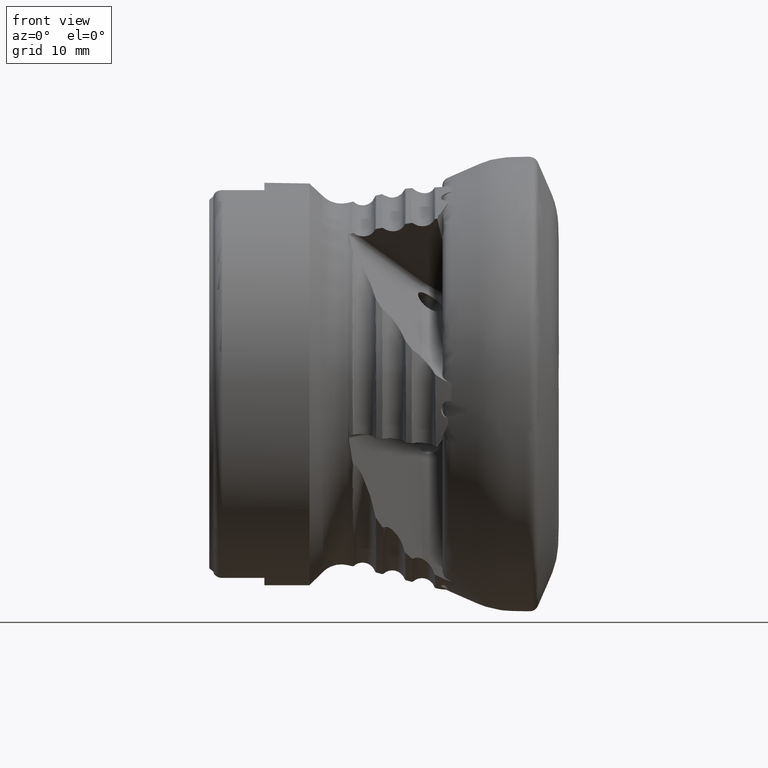
[diagram: clean part render]
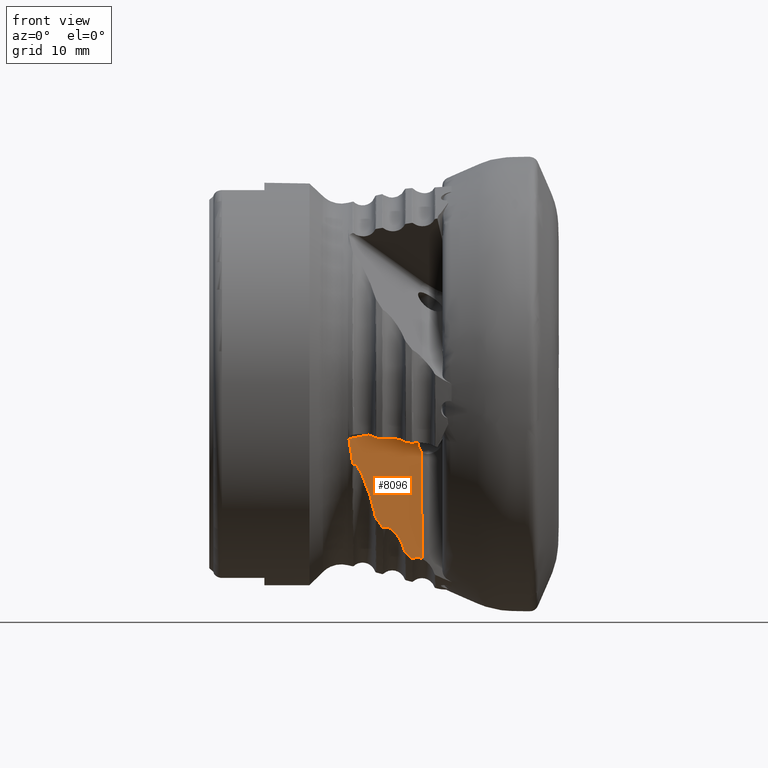
[diagram: same view with one face highlighted and labeled with its STEP entity id]
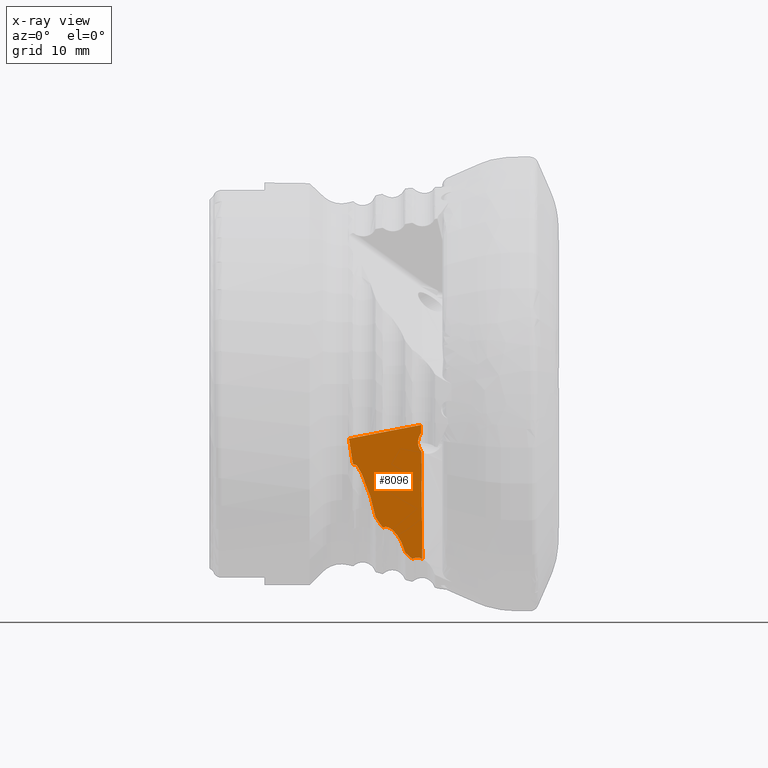
[diagram: x-ray of the same camera — body ghosted, the highlighted face saturated]
A machine part, front view. The second image highlights one B-rep face of the part: STEP entity #8096.
The next image is the same camera in x-ray: the body ghosted, the highlighted face saturated — about 0% of this face is hidden behind the body in this view.
In plain terms, the highlighted planar face has unit normal (-0.6413, 0.75, 0.1624).
Its self-contained STEP definition (entity closure, byte-faithful):
#21 = CARTESIAN_POINT ( 'NONE',  ( -21.89551818465282600, -18.16317429875618900, -9.531383882896204100 ) ) ;
#90 = CARTESIAN_POINT ( 'NONE',  ( -14.88469170939413800, -9.933350203668451800, -19.85538768310722800 ) ) ;
#110 = VERTEX_POINT ( 'NONE', #137 ) ;
#137 = CARTESIAN_POINT ( 'NONE',  ( -14.68649746664390500, -12.84995558553710600, -5.601389818363173000 ) ) ;
#171 = CARTESIAN_POINT ( 'NONE',  ( -22.40440634368647500, -18.66352568997953700, -9.230118136205524200 ) ) ;
#198 = ORIENTED_EDGE ( 'NONE', *, *, #4311, .T. ) ;
#289 = CARTESIAN_POINT ( 'NONE',  ( -16.57686742858383200, -11.54697568696943600, -19.08530214674094300 ) ) ;
#320 = CARTESIAN_POINT ( 'NONE',  ( -16.57686742858383200, -11.54697568696943600, -19.08530214674094300 ) ) ;
#333 = CARTESIAN_POINT ( 'NONE',  ( -18.25290991424851600, -13.54734768981306200, -16.46519012410994200 ) ) ;
#337 = CARTESIAN_POINT ( 'NONE',  ( -19.93455080536362800, -15.28084472873671700, -15.09983443364966700 ) ) ;
#496 = EDGE_CURVE ( 'NONE', #8628, #2736, #2112, .T. ) ;
#518 = CARTESIAN_POINT ( 'NONE',  ( -16.00430456345195300, -10.91796679660729900, -19.72934104544183900 ) ) ;
#564 = ORIENTED_EDGE ( 'NONE', *, *, #11538, .T. ) ;
#676 = VERTEX_POINT ( 'NONE', #12670 ) ;
#703 = CARTESIAN_POINT ( 'NONE',  ( -15.19149377253541500, -12.94293899689999700, -7.166311692473450500 ) ) ;
#779 = CARTESIAN_POINT ( 'NONE',  ( -19.39630615408858500, -14.62955540344042200, -15.98231638814951000 ) ) ;
#863 = CARTESIAN_POINT ( 'NONE',  ( -16.54671596058677700, -11.49996515972720500, -19.18335714723592700 ) ) ;
#875 = CARTESIAN_POINT ( 'NONE',  ( -19.05705526216939900, -14.24998852298964100, -16.39565359106490000 ) ) ;
#1043 = ORIENTED_EDGE ( 'NONE', *, *, #6158, .T. ) ;
#1047 = VERTEX_POINT ( 'NONE', #4912 ) ;
#1076 = CARTESIAN_POINT ( 'NONE',  ( -22.09987393365478800, -18.38838348261205600, -9.298251580356113900 ) ) ;
#1093 = DIRECTION ( 'NONE',  ( -0.008455365442190044400, -0.2184962781864227800, 0.9758011494223197700 ) ) ;
#1133 = CARTESIAN_POINT ( 'NONE',  ( -15.24039740418544000, -10.24172280577937700, -19.83586914992195500 ) ) ;
#1222 = CARTESIAN_POINT ( 'NONE',  ( -22.37133285580149800, -18.63423666543932800, -9.234780763400282300 ) ) ;
#1297 = ORIENTED_EDGE ( 'NONE', *, *, #496, .T. ) ;
#1375 = CARTESIAN_POINT ( 'NONE',  ( -18.67492986759034700, -13.94059743881836300, -16.31553629218237200 ) ) ;
#1378 = CARTESIAN_POINT ( 'NONE',  ( -19.86080953126039700, -15.17700180814966200, -15.28823744750964200 ) ) ;
#1402 = CARTESIAN_POINT ( 'NONE',  ( -15.72643633299805900, -10.63046868727741900, -19.95984967349397000 ) ) ;
#1698 = CARTESIAN_POINT ( 'NONE',  ( -19.96382532083218900, -15.33617788989255400, -14.95987534530735800 ) ) ;
#1803 = EDGE_CURVE ( 'NONE', #2507, #676, #10298, .T. ) ;
#1899 = CARTESIAN_POINT ( 'NONE',  ( -16.47169575050742200, -11.40930020431546600, -19.30584262685906400 ) ) ;
#1936 = CARTESIAN_POINT ( 'NONE',  ( -19.96382532083218900, -15.33617788989255400, -14.95987534530735800 ) ) ;
#1985 = CARTESIAN_POINT ( 'NONE',  ( -19.16711922229169900, -14.36605754179070400, -16.29423061371798900 ) ) ;
#1994 = CARTESIAN_POINT ( 'NONE',  ( -22.73922463184770500, -19.21936719171462500, -7.985095061235489800 ) ) ;
#2034 = CARTESIAN_POINT ( 'NONE',  ( -16.43861068266126000, -11.37440115454285200, -19.33637119634947200 ) ) ;
#2067 = CARTESIAN_POINT ( 'NONE',  ( -20.05190218515461400, -15.53279284970849800, -14.39959125771369300 ) ) ;
#2101 = CARTESIAN_POINT ( 'NONE',  ( -22.25292278323826500, -18.53748784847464000, -9.214005758990119000 ) ) ;
#2112 = B_SPLINE_CURVE_WITH_KNOTS ( 'NONE', 3,
 ( #6746, #9087, #9303, #875, #13289, #12781 ),
 .UNSPECIFIED., .F., .F.,
 ( 4, 2, 4 ),
 ( 4.056120109680497400E-007, 0.0001423891375601142400, 0.0002843726631092603900 ),
 .UNSPECIFIED. ) ;
#2170 = CARTESIAN_POINT ( 'NONE',  ( -22.53649027541634800, -18.84627706900408800, -8.907665645786012800 ) ) ;
#2174 = CARTESIAN_POINT ( 'NONE',  ( -15.51131119843471700, -10.45827192814917000, -19.90559551377851100 ) ) ;
#2420 = CARTESIAN_POINT ( 'NONE',  ( -18.98437496355140700, -14.18880183196702700, -16.39122545975183700 ) ) ;
#2449 = CARTESIAN_POINT ( 'NONE',  ( -15.62926421541744800, -10.54336700361718100, -19.97839194643115900 ) ) ;
#2507 = VERTEX_POINT ( 'NONE', #6790 ) ;
#2604 = EDGE_CURVE ( 'NONE', #10889, #1047, #8702, .T. ) ;
#2684 = ORIENTED_EDGE ( 'NONE', *, *, #13713, .T. ) ;
#2736 = VERTEX_POINT ( 'NONE', #11807 ) ;
#2775 = CARTESIAN_POINT ( 'NONE',  ( -22.98392890179027900, -19.80149287596193000, -6.262780522385495100 ) ) ;
#3089 =( BOUNDED_CURVE ( )  B_SPLINE_CURVE ( 3, ( #13422, #9262, #779, #8207 ),
 .UNSPECIFIED., .F., .T. ) 
 B_SPLINE_CURVE_WITH_KNOTS ( ( 4, 4 ),
 ( 3.566596119595308900, 3.608963219392213400 ),
 .UNSPECIFIED. ) 
 CURVE ( )  GEOMETRIC_REPRESENTATION_ITEM ( )  RATIONAL_B_SPLINE_CURVE ( ( 1.000000000000000000, 0.9998504246647632600, 0.9998504246647632600, 1.000000000000000000 ) ) 
 REPRESENTATION_ITEM ( '' )  );
#3141 = CARTESIAN_POINT ( 'NONE',  ( -20.18917998977642400, -15.76771695231546400, -13.85667484568379700 ) ) ;
#3187 = CARTESIAN_POINT ( 'NONE',  ( -22.37133285580149800, -18.63423666543932800, -9.234780763400282300 ) ) ;
#3294 = CARTESIAN_POINT ( 'NONE',  ( -14.69447643169686800, -13.05614113479237700, -4.680568202418283100 ) ) ;
#3453 = CARTESIAN_POINT ( 'NONE',  ( -16.78384354735667500, -11.87385930717004000, -18.39290300712053400 ) ) ;
#3471 = EDGE_CURVE ( 'NONE', #8246, #2736, #8036, .T. ) ;
#3488 = CARTESIAN_POINT ( 'NONE',  ( -15.78016133004278600, -10.68490150688151500, -19.92061202562921500 ) ) ;
#3543 = B_SPLINE_CURVE_WITH_KNOTS ( 'NONE', 3,
 ( #1936, #2067, #3141, #10635, #4220, #11680, #5256, #12705, #6319, #21, #7415, #1076, #8522, #2101, #9624, #3187 ),
 .UNSPECIFIED., .F., .F.,
 ( 4, 2, 2, 2, 2, 2, 2, 4 ),
 ( 0.008191418732008425000, 0.009969289222001808500, 0.01174715971199519000, 0.01352503020198857400, 0.01441396544698526600, 0.01485843306948361200, 0.01508066688073278800, 0.01530290069198196100 ),
 .UNSPECIFIED. ) ;
#3651 = VERTEX_POINT ( 'NONE', #1698 ) ;
#4059 = EDGE_LOOP ( 'NONE', ( #2684, #12990, #6420, #5310, #198, #7145, #12754, #13209, #564, #1297, #12024, #10478, #5480, #1043, #8148 ) ) ;
#4220 = CARTESIAN_POINT ( 'NONE',  ( -20.67131802328085800, -16.51785656023263700, -12.29603826843276000 ) ) ;
#4311 = EDGE_CURVE ( 'NONE', #1047, #11411, #10365, .T. ) ;
#4342 = VERTEX_POINT ( 'NONE', #5199 ) ;
#4357 = CARTESIAN_POINT ( 'NONE',  ( -22.51666432587495600, -18.81227275856143400, -8.986426162551753200 ) ) ;
#4441 = EDGE_CURVE ( 'NONE', #11411, #4887, #9343, .T. ) ;
#4520 = CARTESIAN_POINT ( 'NONE',  ( -17.26101675611979000, -12.47877134187168500, -17.48343818290265300 ) ) ;
#4549 = CARTESIAN_POINT ( 'NONE',  ( -15.75430266795663500, -10.65801353672348700, -19.94267832479124500 ) ) ;
#4551 = CARTESIAN_POINT ( 'NONE',  ( -14.69925495774384100, -13.17962369312990100, -4.129096921719585600 ) ) ;
#4716 =( BOUNDED_CURVE ( )  B_SPLINE_CURVE ( 3, ( #8132, #703, #11350, #4928 ),
 .UNSPECIFIED., .F., .T. ) 
 B_SPLINE_CURVE_WITH_KNOTS ( ( 4, 4 ),
 ( 2.202697630433300800, 3.788176573007116000 ),
 .UNSPECIFIED. ) 
 CURVE ( )  GEOMETRIC_REPRESENTATION_ITEM ( )  RATIONAL_B_SPLINE_CURVE ( ( 1.000000000000000000, 0.8012644564130344500, 0.8012644564130344500, 1.000000000000000000 ) ) 
 REPRESENTATION_ITEM ( '' )  );
#4887 = VERTEX_POINT ( 'NONE', #6274 ) ;
#4912 = CARTESIAN_POINT ( 'NONE',  ( -22.94766338248803500, -19.77198264176343300, -6.255858502911101100 ) ) ;
#4928 = CARTESIAN_POINT ( 'NONE',  ( -14.68649746664390500, -12.84995558553710600, -5.601389818363173000 ) ) ;
#5199 = CARTESIAN_POINT ( 'NONE',  ( -19.82556857491017200, -15.13513499964323100, -15.34243450678225800 ) ) ;
#5209 = PLANE ( 'NONE',  #8446 ) ;
#5227 = DIRECTION ( 'NONE',  ( -0.7672847685016596100, -0.6243603745673241800, -0.1464520627902022600 ) ) ;
#5256 = CARTESIAN_POINT ( 'NONE',  ( -21.24092964573181100, -17.32849273642026200, -10.80144090222798600 ) ) ;
#5310 = ORIENTED_EDGE ( 'NONE', *, *, #2604, .T. ) ;
#5390 = CARTESIAN_POINT ( 'NONE',  ( -22.46425712965890800, -18.73500250339650500, -9.136350152787647600 ) ) ;
#5480 = ORIENTED_EDGE ( 'NONE', *, *, #7803, .T. ) ;
#5552 = CARTESIAN_POINT ( 'NONE',  ( -17.66034721543432400, -12.93070100848040800, -16.97314438380973900 ) ) ;
#5557 = CARTESIAN_POINT ( 'NONE',  ( -19.96382532083218900, -15.33617788989255400, -14.95987534530735800 ) ) ;
#5777 = EDGE_CURVE ( 'NONE', #10869, #110, #4716, .T. ) ;
#5807 = VECTOR ( 'NONE', #5227, 1000.000000000000100 ) ;
#5972 = EDGE_CURVE ( 'NONE', #110, #10889, #9517, .T. ) ;
#6158 = EDGE_CURVE ( 'NONE', #13021, #676, #7612, .T. ) ;
#6251 = DIRECTION ( 'NONE',  ( -0.6412508018089285700, 0.7499556647488115900, 0.1623696710921542500 ) ) ;
#6274 = CARTESIAN_POINT ( 'NONE',  ( -22.37133285580149800, -18.63423666543932800, -9.234780763400282300 ) ) ;
#6319 = CARTESIAN_POINT ( 'NONE',  ( -21.68949119646097400, -17.91651295982522600, -9.856999477716867000 ) ) ;
#6420 = ORIENTED_EDGE ( 'NONE', *, *, #5972, .T. ) ;
#6471 = CARTESIAN_POINT ( 'NONE',  ( -22.42822636250938100, -18.68973420420536500, -9.203138851776664400 ) ) ;
#6576 = CARTESIAN_POINT ( 'NONE',  ( -16.65889680304042000, -11.69561854203512900, -18.72270888260009200 ) ) ;
#6628 = CARTESIAN_POINT ( 'NONE',  ( -18.00082372135609200, -13.29360819762169400, -16.64159558228149600 ) ) ;
#6746 = CARTESIAN_POINT ( 'NONE',  ( -19.16711922229169900, -14.36605754179070400, -16.29423061371798900 ) ) ;
#6790 = CARTESIAN_POINT ( 'NONE',  ( -14.56182803034311000, -9.628355286701559400, -19.98900914385499700 ) ) ;
#7030 = EDGE_CURVE ( 'NONE', #3651, #4887, #3543, .T. ) ;
#7103 = CARTESIAN_POINT ( 'NONE',  ( -16.57686742858383200, -11.54697568696943600, -19.08530214674094300 ) ) ;
#7145 = ORIENTED_EDGE ( 'NONE', *, *, #4441, .T. ) ;
#7153 = CARTESIAN_POINT ( 'NONE',  ( -16.56518596587661600, -11.52580807500564000, -19.13693754833878200 ) ) ;
#7415 = CARTESIAN_POINT ( 'NONE',  ( -21.96940648798073400, -18.24914056089923900, -9.426130534760522700 ) ) ;
#7479 = CARTESIAN_POINT ( 'NONE',  ( -15.15047835104717900, -10.16552589400645200, -19.83268900366148200 ) ) ;
#7574 = CARTESIAN_POINT ( 'NONE',  ( -22.38827316963038400, -18.64701667976984500, -9.242655052202703600 ) ) ;
#7612 = B_SPLINE_CURVE_WITH_KNOTS ( 'NONE', 3,
 ( #3488, #4549, #1402, #8879, #2449, #9963 ),
 .UNSPECIFIED., .F., .F.,
 ( 4, 2, 4 ),
 ( 3.306267551218468300E-007, 0.0001285461228658994200, 0.0002567616189766770300 ),
 .UNSPECIFIED. ) ;
#7741 = CARTESIAN_POINT ( 'NONE',  ( -18.38737185033856000, -13.67812567661278300, -16.39218469388001900 ) ) ;
#7744 = CARTESIAN_POINT ( 'NONE',  ( -19.88868751951286700, -15.21391501250033700, -15.22784141220856000 ) ) ;
#7803 = EDGE_CURVE ( 'NONE', #9259, #13021, #12238, .T. ) ;
#7943 = CARTESIAN_POINT ( 'NONE',  ( -15.78016133004278600, -10.68490150688151500, -19.92061202562921500 ) ) ;
#8036 = B_SPLINE_CURVE_WITH_KNOTS ( 'NONE', 3,
 ( #289, #6576, #3453, #10936, #4520, #11976, #5552, #13010, #6628, #333, #7741, #1375, #8847, #2420 ),
 .UNSPECIFIED., .F., .F.,
 ( 4, 2, 2, 2, 2, 2, 4 ),
 ( 9.638812016845414200E-007, 0.001186420443614600200, 0.002371877006027515800, 0.002964605287233972600, 0.003557333568440429000, 0.004150061849646885900, 0.004742790130853342300 ),
 .UNSPECIFIED. ) ;
#8096 = ADVANCED_FACE ( 'NONE', ( #9681 ), #5209, .F. ) ;
#8132 = CARTESIAN_POINT ( 'NONE',  ( -14.66840314680578800, -12.38237774186205300, -7.689585558307262800 ) ) ;
#8148 = ORIENTED_EDGE ( 'NONE', *, *, #1803, .F. ) ;
#8207 = CARTESIAN_POINT ( 'NONE',  ( -19.16711922229169900, -14.36605754179070400, -16.29423061371798900 ) ) ;
#8246 = VERTEX_POINT ( 'NONE', #320 ) ;
#8301 = CARTESIAN_POINT ( 'NONE',  ( -16.49968829117278800, -11.44133190795129500, -19.26844575091500300 ) ) ;
#8446 = AXIS2_PLACEMENT_3D ( 'NONE', #10581, #6251, #13708 ) ;
#8522 = CARTESIAN_POINT ( 'NONE',  ( -22.14676706481797200, -18.43665170929474000, -9.260505786889236600 ) ) ;
#8590 = CARTESIAN_POINT ( 'NONE',  ( -15.42051139532144600, -10.38788773409242200, -19.87208912387053400 ) ) ;
#8628 = VERTEX_POINT ( 'NONE', #1985 ) ;
#8702 = LINE ( 'NONE', #2775, #5807 ) ;
#8758 = CARTESIAN_POINT ( 'NONE',  ( -16.43861068266126000, -11.37440115454285200, -19.33637119634947200 ) ) ;
#8847 = CARTESIAN_POINT ( 'NONE',  ( -18.83458006141475500, -14.07775634274734400, -16.31253522572614000 ) ) ;
#8849 = CARTESIAN_POINT ( 'NONE',  ( -19.82556857491017200, -15.13513499964323100, -15.34243450678225800 ) ) ;
#8879 = CARTESIAN_POINT ( 'NONE',  ( -15.66401153780263800, -10.57318942924509900, -19.97787615616425300 ) ) ;
#9087 = CARTESIAN_POINT ( 'NONE',  ( -19.14377518179098900, -14.33921873075564300, -16.32600091692563600 ) ) ;
#9259 = VERTEX_POINT ( 'NONE', #8758 ) ;
#9262 = CARTESIAN_POINT ( 'NONE',  ( -19.61582210580014200, -14.88595290680045100, -15.66500355699783700 ) ) ;
#9303 = CARTESIAN_POINT ( 'NONE',  ( -19.11806189082101100, -14.31111219573913500, -16.35426966114107500 ) ) ;
#9343 = B_SPLINE_CURVE_WITH_KNOTS ( 'NONE', 3,
 ( #12752, #2170, #4357, #11818, #5390, #12850, #6471, #171, #7574, #1222 ),
 .UNSPECIFIED., .F., .F.,
 ( 4, 2, 2, 2, 4 ),
 ( 0.0005011069527880771400, 0.0007655349649700914700, 0.0008977489710610970600, 0.0009638559741066044100, 0.001029962977152112000 ),
 .UNSPECIFIED. ) ;
#9395 = CARTESIAN_POINT ( 'NONE',  ( -16.43861068266126000, -11.37440115454285200, -19.33637119634947200 ) ) ;
#9504 = CARTESIAN_POINT ( 'NONE',  ( -22.55407711453759800, -18.87864196305502100, -8.827634314458567400 ) ) ;
#9517 = LINE ( 'NONE', #9641, #11962 ) ;
#9624 = CARTESIAN_POINT ( 'NONE',  ( -22.31409174155847100, -18.59105315256453400, -9.208173637380287600 ) ) ;
#9641 = CARTESIAN_POINT ( 'NONE',  ( -14.69925495774384100, -13.17962369312990100, -4.129096921719585600 ) ) ;
#9642 = CARTESIAN_POINT ( 'NONE',  ( -14.56182803034311000, -9.628355286701559400, -19.98900914385499700 ) ) ;
#9681 = FACE_OUTER_BOUND ( 'NONE', #4059, .T. ) ;
#9684 = CARTESIAN_POINT ( 'NONE',  ( -15.59741707130238300, -10.52039145622314500, -19.95873701482490500 ) ) ;
#9736 = CARTESIAN_POINT ( 'NONE',  ( -14.66840314680578800, -12.38237774186205300, -7.689585558307262800 ) ) ;
#9963 = CARTESIAN_POINT ( 'NONE',  ( -15.59741707130238300, -10.52039145622314500, -19.95873701482490500 ) ) ;
#10298 = B_SPLINE_CURVE_WITH_KNOTS ( 'NONE', 3,
 ( #9642, #11741, #90, #7479, #1133, #8590, #2174, #9684 ),
 .UNSPECIFIED., .F., .F.,
 ( 4, 2, 2, 4 ),
 ( 0.0002198754610765449400, 0.0009148930533316950300, 0.001262401849459273800, 0.001609910645586852600 ),
 .UNSPECIFIED. ) ;
#10365 =( BOUNDED_CURVE ( )  B_SPLINE_CURVE ( 3, ( #13487, #11587, #1994, #9504 ),
 .UNSPECIFIED., .F., .T. ) 
 B_SPLINE_CURVE_WITH_KNOTS ( ( 4, 4 ),
 ( 3.209140561150102500, 3.304302492896949300 ),
 .UNSPECIFIED. ) 
 CURVE ( )  GEOMETRIC_REPRESENTATION_ITEM ( )  RATIONAL_B_SPLINE_CURVE ( ( 1.000000000000000000, 0.9992454929253835600, 0.9992454929253835600, 1.000000000000000000 ) ) 
 REPRESENTATION_ITEM ( '' )  );
#10399 = EDGE_CURVE ( 'NONE', #3651, #4342, #11725, .T. ) ;
#10478 = ORIENTED_EDGE ( 'NONE', *, *, #11573, .T. ) ;
#10581 = CARTESIAN_POINT ( 'NONE',  ( -14.69925495774384800, -13.17962369312990100, -4.129096921719586500 ) ) ;
#10635 = CARTESIAN_POINT ( 'NONE',  ( -20.49775272213312900, -16.25892117434487400, -12.80654722226448100 ) ) ;
#10869 = VERTEX_POINT ( 'NONE', #9736 ) ;
#10889 = VERTEX_POINT ( 'NONE', #3294 ) ;
#10936 = CARTESIAN_POINT ( 'NONE',  ( -17.08450343583900400, -12.26535182115591700, -17.77207503271285200 ) ) ;
#11350 = CARTESIAN_POINT ( 'NONE',  ( -15.19902117487775900, -13.13745565114264500, -6.297603189210924800 ) ) ;
#11411 = VERTEX_POINT ( 'NONE', #12237 ) ;
#11538 = EDGE_CURVE ( 'NONE', #4342, #8628, #3089, .T. ) ;
#11573 = EDGE_CURVE ( 'NONE', #8246, #9259, #11960, .T. ) ;
#11587 = CARTESIAN_POINT ( 'NONE',  ( -22.87051911711584800, -19.51737226488673800, -7.127189161315489400 ) ) ;
#11675 = CARTESIAN_POINT ( 'NONE',  ( -15.78016133004278600, -10.68490150688151500, -19.92061202562921500 ) ) ;
#11680 = CARTESIAN_POINT ( 'NONE',  ( -21.04370906771644600, -17.05319740589991200, -11.29409102758091700 ) ) ;
#11725 = B_SPLINE_CURVE_WITH_KNOTS ( 'NONE', 3,
 ( #5557, #13012, #337, #7744, #1378, #8849 ),
 .UNSPECIFIED., .F., .F.,
 ( 4, 2, 4 ),
 ( 0.0004860526623358036600, 0.0007178256159046484100, 0.0009495985694734931700 ),
 .UNSPECIFIED. ) ;
#11741 = CARTESIAN_POINT ( 'NONE',  ( -14.71976943149983800, -9.780346356290605700, -19.91075245088093500 ) ) ;
#11807 = CARTESIAN_POINT ( 'NONE',  ( -18.98437496355140700, -14.18880183196702700, -16.39122545975183700 ) ) ;
#11818 = CARTESIAN_POINT ( 'NONE',  ( -22.47827159385122900, -18.75493020777828700, -9.099655440368565000 ) ) ;
#11960 = B_SPLINE_CURVE_WITH_KNOTS ( 'NONE', 3,
 ( #7103, #7153, #863, #8301, #1899, #9395 ),
 .UNSPECIFIED., .F., .F.,
 ( 4, 2, 4 ),
 ( 9.664596305268232300E-007, 0.0001697041393674528100, 0.0003384418191043788100 ),
 .UNSPECIFIED. ) ;
#11962 = VECTOR ( 'NONE', #1093, 1000.000000000000000 ) ;
#11976 = CARTESIAN_POINT ( 'NONE',  ( -17.55634208699618500, -12.81529050146839000, -17.09545411917110500 ) ) ;
#12024 = ORIENTED_EDGE ( 'NONE', *, *, #3471, .F. ) ;
#12063 = DIRECTION ( 'NONE',  ( -0.008455365442190044400, -0.2184962781864227800, 0.9758011494223197700 ) ) ;
#12172 = CARTESIAN_POINT ( 'NONE',  ( -16.22380528893931700, -11.14781845077490100, -19.53457847885071200 ) ) ;
#12237 = CARTESIAN_POINT ( 'NONE',  ( -22.55407711453759800, -18.87864196305502100, -8.827634314458567400 ) ) ;
#12238 =( BOUNDED_CURVE ( )  B_SPLINE_CURVE ( 3, ( #2034, #12172, #518, #7943 ),
 .UNSPECIFIED., .F., .T. ) 
 B_SPLINE_CURVE_WITH_KNOTS ( ( 4, 4 ),
 ( 3.756197429889388800, 3.787223828644539700 ),
 .UNSPECIFIED. ) 
 CURVE ( )  GEOMETRIC_REPRESENTATION_ITEM ( )  RATIONAL_B_SPLINE_CURVE ( ( 1.000000000000000000, 0.9999197818238144700, 0.9999197818238144700, 1.000000000000000000 ) ) 
 REPRESENTATION_ITEM ( '' )  );
#12670 = CARTESIAN_POINT ( 'NONE',  ( -15.59741707130238300, -10.52039145622314500, -19.95873701482490500 ) ) ;
#12705 = CARTESIAN_POINT ( 'NONE',  ( -21.57355806420869000, -17.76688484902019700, -10.09024645688573500 ) ) ;
#12752 = CARTESIAN_POINT ( 'NONE',  ( -22.55407711453759800, -18.87864196305502100, -8.827634314458567400 ) ) ;
#12754 = ORIENTED_EDGE ( 'NONE', *, *, #7030, .F. ) ;
#12781 = CARTESIAN_POINT ( 'NONE',  ( -18.98437496355140700, -14.18880183196702700, -16.39122545975183700 ) ) ;
#12850 = CARTESIAN_POINT ( 'NONE',  ( -22.43795687652789200, -18.70159889961330500, -9.186766978892755700 ) ) ;
#12877 = VECTOR ( 'NONE', #12063, 1000.000000000000000 ) ;
#12990 = ORIENTED_EDGE ( 'NONE', *, *, #5777, .T. ) ;
#13010 = CARTESIAN_POINT ( 'NONE',  ( -17.88249407858849700, -13.16974846839209000, -16.74635854172517200 ) ) ;
#13012 = CARTESIAN_POINT ( 'NONE',  ( -19.95262714577315000, -15.31118007967102000, -15.03111038919670900 ) ) ;
#13021 = VERTEX_POINT ( 'NONE', #11675 ) ;
#13209 = ORIENTED_EDGE ( 'NONE', *, *, #10399, .T. ) ;
#13235 = LINE ( 'NONE', #4551, #12877 ) ;
#13289 = CARTESIAN_POINT ( 'NONE',  ( -19.02019746742290000, -14.21535765870584300, -16.41004373175414300 ) ) ;
#13422 = CARTESIAN_POINT ( 'NONE',  ( -19.82556857491017200, -15.13513499964323100, -15.34243450678225800 ) ) ;
#13487 = CARTESIAN_POINT ( 'NONE',  ( -22.94766338248803500, -19.77198264176343300, -6.255858502911101100 ) ) ;
#13708 = DIRECTION ( 'NONE',  ( -0.7600414154840490200, -0.6498746392566825400, 0.0000000000000000000 ) ) ;
#13713 = EDGE_CURVE ( 'NONE', #2507, #10869, #13235, .T. ) ;